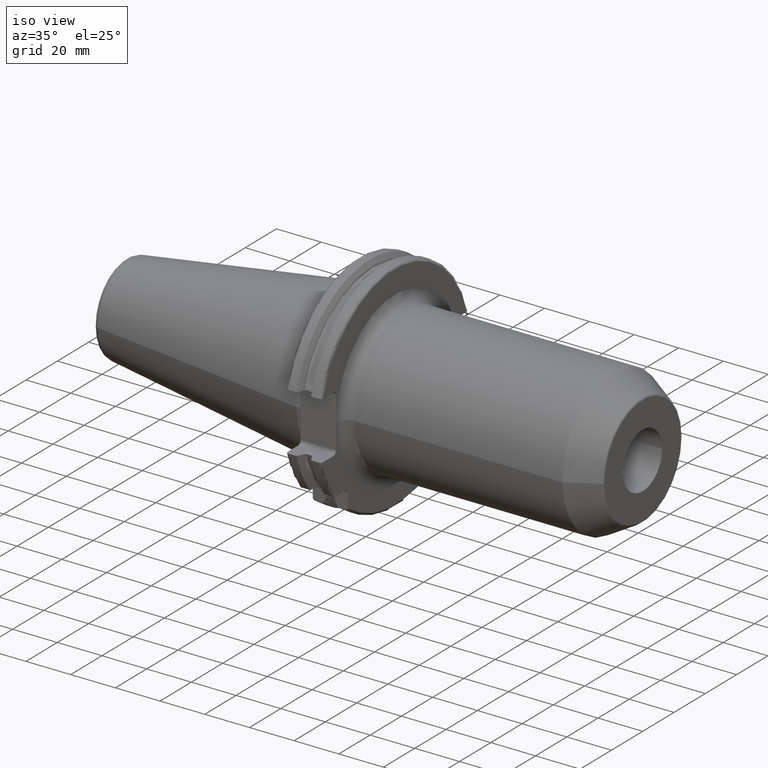
[diagram: clean part render]
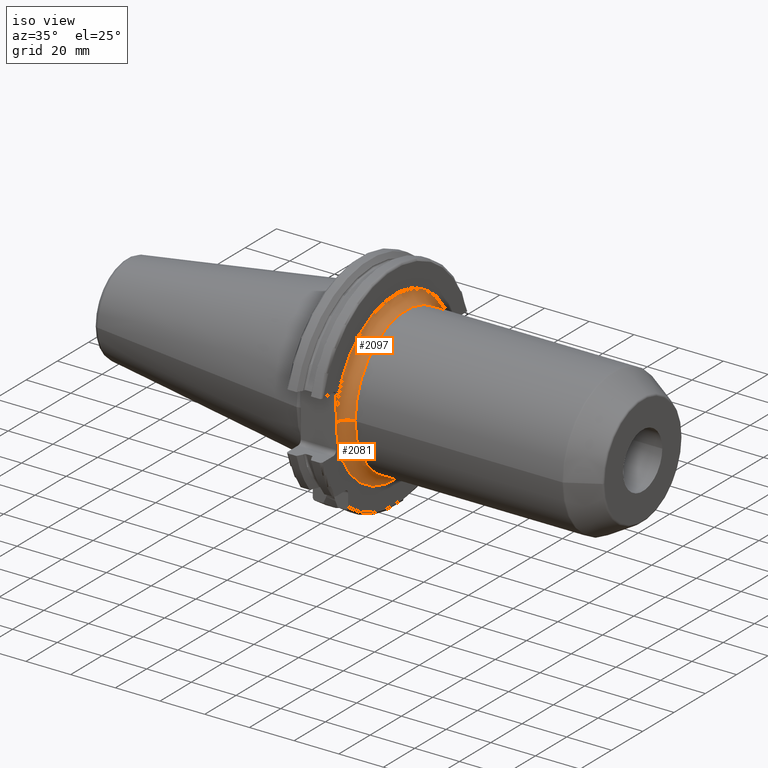
[diagram: same view with one multi-face feature highlighted, each face labeled with its STEP entity id]
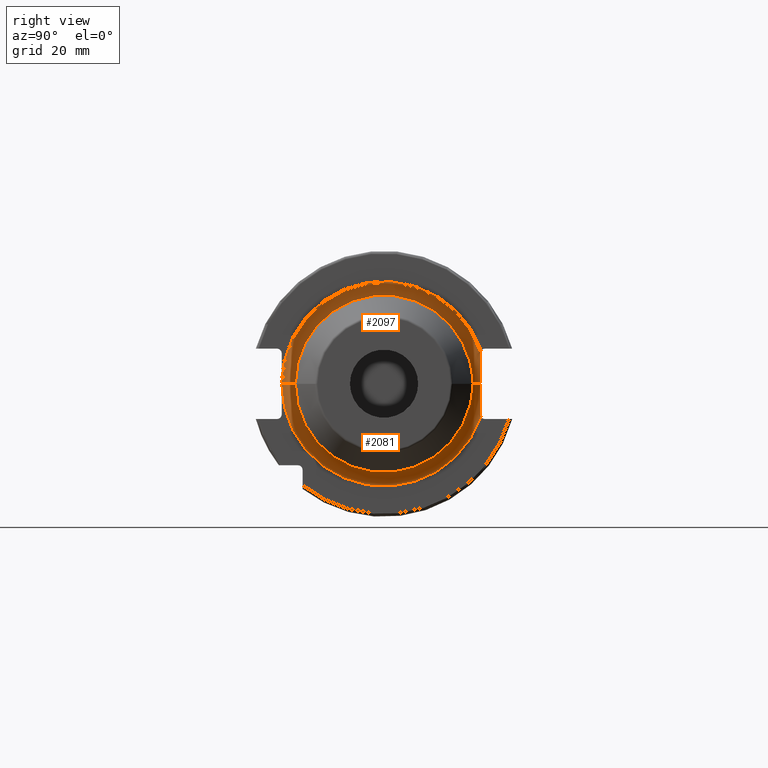
[diagram: same view with one multi-face feature highlighted, each face labeled with its STEP entity id]
A machine part, iso view. The highlighted faces form ONE feature: a constant-radius fillet chain: 2 tangent blend faces with common blend radius 5 mm. The faces share edges in the B-rep.
A second angle (right view) of the same feature is appended — it is thin or edge-on in the first view.
Their STEP definitions:
[1] entity #2097 (Torus):
#165=CARTESIAN_POINT('',(1.905E1,0.E0,0.E0));
#166=DIRECTION('',(1.E0,0.E0,0.E0));
#167=DIRECTION('',(0.E0,9.473472989159E-1,3.202078937765E-1));
#168=AXIS2_PLACEMENT_3D('',#165,#166,#167);
#182=CARTESIAN_POINT('',(2.405E1,-3.75E1,5.791200852201E-13));
#183=DIRECTION('',(0.E0,-1.544337574488E-14,-1.E0));
#184=DIRECTION('',(-1.E0,1.989519660128E-14,0.E0));
#185=AXIS2_PLACEMENT_3D('',#182,#183,#184);
#203=CARTESIAN_POINT('',(1.907318186397E1,3.53E1,1.115E1));
#204=CARTESIAN_POINT('',(1.907027321852E1,3.53E1,1.124993627136E1));
#205=CARTESIAN_POINT('',(1.906332712145E1,3.531714239070E1,1.144953941958E1));
#206=CARTESIAN_POINT('',(1.905331720563E1,3.539337488525E1,1.173981135523E1));
#207=CARTESIAN_POINT('',(1.905E1,3.547592660500E1,1.192120717185E1));
#208=CARTESIAN_POINT('',(1.905E1,3.552490167809E1,1.200816633086E1));
#210=CARTESIAN_POINT('',(1.956001107599E1,3.53E1,-2.937264309328E-3));
#211=CARTESIAN_POINT('',(1.956003915614E1,3.53E1,6.858000969931E-1));
#212=CARTESIAN_POINT('',(1.954040816390E1,3.53E1,2.104099232204E0));
#213=CARTESIAN_POINT('',(1.944224580505E1,3.53E1,4.421173618071E0));
#214=CARTESIAN_POINT('',(1.930174961290E1,3.53E1,6.726416590888E0));
#215=CARTESIAN_POINT('',(1.916071364245E1,3.53E1,8.985625641661E0));
#216=CARTESIAN_POINT('',(1.909395574602E1,3.53E1,1.043624359870E1));
#217=CARTESIAN_POINT('',(1.907318186397E1,3.53E1,1.115E1));
#219=CARTESIAN_POINT('',(2.405E1,3.749999987018E1,-3.120323263988E-3));
#220=DIRECTION('',(0.E0,8.320862037301E-5,9.999999965382E-1));
#221=DIRECTION('',(-8.979977848011E-1,-4.399999740362E-1,3.661179093046E-5));
#222=AXIS2_PLACEMENT_3D('',#219,#220,#221);
#1049=CARTESIAN_POINT('',(2.405E1,0.E0,0.E0));
#1050=DIRECTION('',(1.E0,0.E0,0.E0));
#1051=DIRECTION('',(0.E0,1.E0,0.E0));
#1052=AXIS2_PLACEMENT_3D('',#1049,#1050,#1051);
#1775=CARTESIAN_POINT('',(1.905E1,-3.75E1,-2.552881061589E-12));
#1777=VERTEX_POINT('',#1775);
#1779=CARTESIAN_POINT('',(2.405E1,-3.25E1,0.E0));
#1780=CARTESIAN_POINT('',(2.405E1,3.25E1,0.E0));
#1781=VERTEX_POINT('',#1779);
#1782=VERTEX_POINT('',#1780);
#1783=CARTESIAN_POINT('',(1.905E1,3.552552370935E1,1.200779601662E1));
#1784=VERTEX_POINT('',#1783);
#1805=VERTEX_POINT('',#210);
#1806=VERTEX_POINT('',#217);
#2082=CARTESIAN_POINT('',(2.405E1,0.E0,0.E0));
#2083=DIRECTION('',(1.E0,0.E0,0.E0));
#2084=DIRECTION('',(0.E0,1.485959642860E-3,-9.999988959614E-1));
#2085=AXIS2_PLACEMENT_3D('',#2082,#2083,#2084);
#2086=TOROIDAL_SURFACE('',#2085,3.75E1,5.E0);
#2087=ORIENTED_EDGE('',*,*,#2048,.F.);
#2089=ORIENTED_EDGE('',*,*,#2088,.F.);
#2090=ORIENTED_EDGE('',*,*,#1983,.F.);
#2091=ORIENTED_EDGE('',*,*,#2075,.T.);
#2093=ORIENTED_EDGE('',*,*,#2092,.T.);
#2094=ORIENTED_EDGE('',*,*,#2071,.F.);
#2095=EDGE_LOOP('',(#2087,#2089,#2090,#2091,#2093,#2094));
#2096=FACE_OUTER_BOUND('',#2095,.F.);
#2097=ADVANCED_FACE('',(#2096),#2086,.F.);
#169=CIRCLE('',#168,3.75E1);
#186=CIRCLE('',#185,5.E0);
#209=B_SPLINE_CURVE_WITH_KNOTS('',3,(#203,#204,#205,#206,#207,#208),
.UNSPECIFIED.,.F.,.F.,(4,1,1,4),(0.E0,3.333333333333E-1,6.666666666667E-1,1.E0),
.UNSPECIFIED.);
#218=B_SPLINE_CURVE_WITH_KNOTS('',3,(#210,#211,#212,#213,#214,#215,#216,#217),
.UNSPECIFIED.,.F.,.F.,(4,1,1,1,1,4),(0.E0,2.E-1,4.E-1,6.E-1,8.E-1,1.E0),
.UNSPECIFIED.);
#223=CIRCLE('',#222,5.E0);
#1053=CIRCLE('',#1052,3.25E1);
#1983=EDGE_CURVE('',#1805,#1806,#218,.T.);
#2048=EDGE_CURVE('',#1784,#1777,#169,.T.);
#2071=EDGE_CURVE('',#1777,#1781,#186,.T.);
#2075=EDGE_CURVE('',#1805,#1782,#223,.T.);
#2088=EDGE_CURVE('',#1806,#1784,#209,.T.);
#2092=EDGE_CURVE('',#1782,#1781,#1053,.T.);
[2] entity #2081 (Torus):
#140=CARTESIAN_POINT('',(1.905E1,0.E0,0.E0));
#141=DIRECTION('',(1.E0,0.E0,0.E0));
#142=DIRECTION('',(0.E0,-1.E0,-6.807682830904E-14));
#143=AXIS2_PLACEMENT_3D('',#140,#141,#142);
#182=CARTESIAN_POINT('',(2.405E1,-3.75E1,5.791200852201E-13));
#183=DIRECTION('',(0.E0,-1.544337574488E-14,-1.E0));
#184=DIRECTION('',(-1.E0,1.989519660128E-14,0.E0));
#185=AXIS2_PLACEMENT_3D('',#182,#183,#184);
#187=CARTESIAN_POINT('',(1.907318186397E1,3.53E1,-1.115E1));
#188=CARTESIAN_POINT('',(1.909394334032E1,3.53E1,-1.043666983811E1));
#189=CARTESIAN_POINT('',(1.916064885470E1,3.53E1,-8.986871090312E0));
#190=CARTESIAN_POINT('',(1.930158508283E1,3.53E1,-6.728957487666E0));
#191=CARTESIAN_POINT('',(1.944205453009E1,3.53E1,-4.424586716992E0));
#192=CARTESIAN_POINT('',(1.954026272841E1,3.53E1,-2.108654030340E0));
#193=CARTESIAN_POINT('',(1.955998301463E1,3.53E1,-6.912138563639E-1));
#194=CARTESIAN_POINT('',(1.956001107599E1,3.53E1,-2.937264309328E-3));
#196=CARTESIAN_POINT('',(1.905E1,3.552533947538E1,-1.200862580055E1));
#197=CARTESIAN_POINT('',(1.905E1,3.547632022991E1,-1.192158820995E1));
#198=CARTESIAN_POINT('',(1.905332328817E1,3.539310426423E1,-1.173939920439E1));
#199=CARTESIAN_POINT('',(1.906332755025E1,3.531720886651E1,-1.144959473333E1));
#200=CARTESIAN_POINT('',(1.907027323961E1,3.53E1,-1.124993554682E1));
#201=CARTESIAN_POINT('',(1.907318186397E1,3.53E1,-1.115E1));
#210=CARTESIAN_POINT('',(1.956001107599E1,3.53E1,-2.937264309328E-3));
#219=CARTESIAN_POINT('',(2.405E1,3.749999987018E1,-3.120323263988E-3));
#220=DIRECTION('',(0.E0,8.320862037301E-5,9.999999965382E-1));
#221=DIRECTION('',(-8.979977848011E-1,-4.399999740362E-1,3.661179093046E-5));
#222=AXIS2_PLACEMENT_3D('',#219,#220,#221);
#1091=CARTESIAN_POINT('',(2.405E1,0.E0,0.E0));
#1092=DIRECTION('',(1.E0,0.E0,0.E0));
#1093=DIRECTION('',(0.E0,-1.E0,0.E0));
#1094=AXIS2_PLACEMENT_3D('',#1091,#1092,#1093);
#1775=CARTESIAN_POINT('',(1.905E1,-3.75E1,-2.552881061589E-12));
#1776=CARTESIAN_POINT('',(1.905E1,3.552513331745E1,-1.200895094409E1));
#1777=VERTEX_POINT('',#1775);
#1778=VERTEX_POINT('',#1776);
#1779=CARTESIAN_POINT('',(2.405E1,-3.25E1,0.E0));
#1780=CARTESIAN_POINT('',(2.405E1,3.25E1,0.E0));
#1781=VERTEX_POINT('',#1779);
#1782=VERTEX_POINT('',#1780);
#1805=VERTEX_POINT('',#210);
#1807=VERTEX_POINT('',#187);
#2065=CARTESIAN_POINT('',(2.405E1,0.E0,0.E0));
#2066=DIRECTION('',(1.E0,0.E0,0.E0));
#2067=DIRECTION('',(0.E0,-9.999888073119E-1,4.731305424835E-3));
#2068=AXIS2_PLACEMENT_3D('',#2065,#2066,#2067);
#2069=TOROIDAL_SURFACE('',#2068,3.75E1,5.E0);
#2070=ORIENTED_EDGE('',*,*,#2019,.F.);
#2072=ORIENTED_EDGE('',*,*,#2071,.T.);
#2074=ORIENTED_EDGE('',*,*,#2073,.T.);
#2076=ORIENTED_EDGE('',*,*,#2075,.F.);
#2077=ORIENTED_EDGE('',*,*,#1981,.F.);
#2078=ORIENTED_EDGE('',*,*,#2004,.F.);
#2079=EDGE_LOOP('',(#2070,#2072,#2074,#2076,#2077,#2078));
#2080=FACE_OUTER_BOUND('',#2079,.F.);
#2081=ADVANCED_FACE('',(#2080),#2069,.F.);
#144=CIRCLE('',#143,3.75E1);
#186=CIRCLE('',#185,5.E0);
#195=B_SPLINE_CURVE_WITH_KNOTS('',3,(#187,#188,#189,#190,#191,#192,#193,#194),
.UNSPECIFIED.,.F.,.F.,(4,1,1,1,1,4),(0.E0,2.E-1,4.E-1,6.E-1,8.E-1,1.E0),
.UNSPECIFIED.);
#202=B_SPLINE_CURVE_WITH_KNOTS('',3,(#196,#197,#198,#199,#200,#201),
.UNSPECIFIED.,.F.,.F.,(4,1,1,4),(0.E0,3.333333333333E-1,6.666666666667E-1,1.E0),
.UNSPECIFIED.);
#223=CIRCLE('',#222,5.E0);
#1095=CIRCLE('',#1094,3.25E1);
#1981=EDGE_CURVE('',#1807,#1805,#195,.T.);
#2004=EDGE_CURVE('',#1778,#1807,#202,.T.);
#2019=EDGE_CURVE('',#1777,#1778,#144,.T.);
#2071=EDGE_CURVE('',#1777,#1781,#186,.T.);
#2073=EDGE_CURVE('',#1781,#1782,#1095,.T.);
#2075=EDGE_CURVE('',#1805,#1782,#223,.T.);